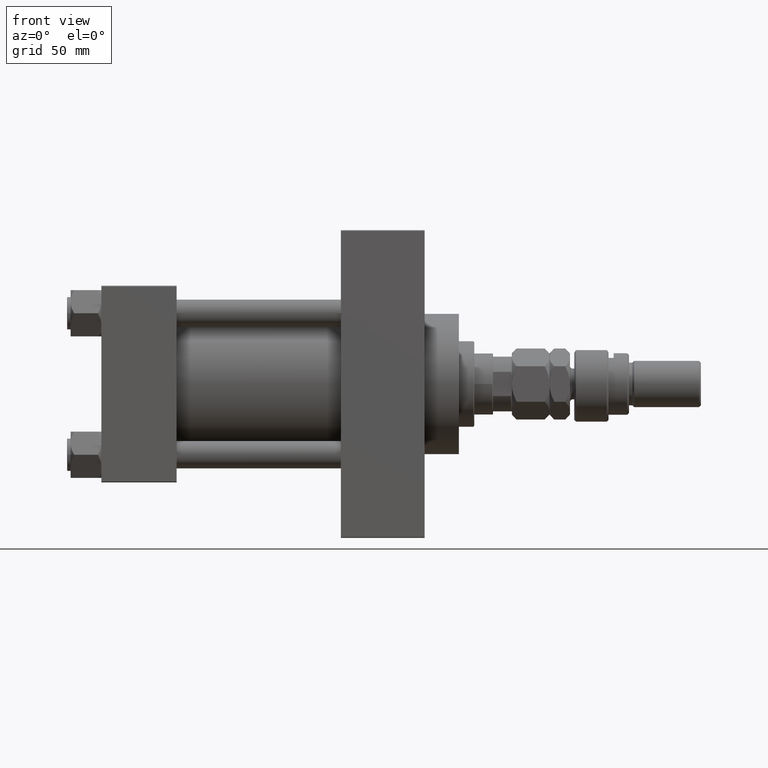
[diagram: clean part render]
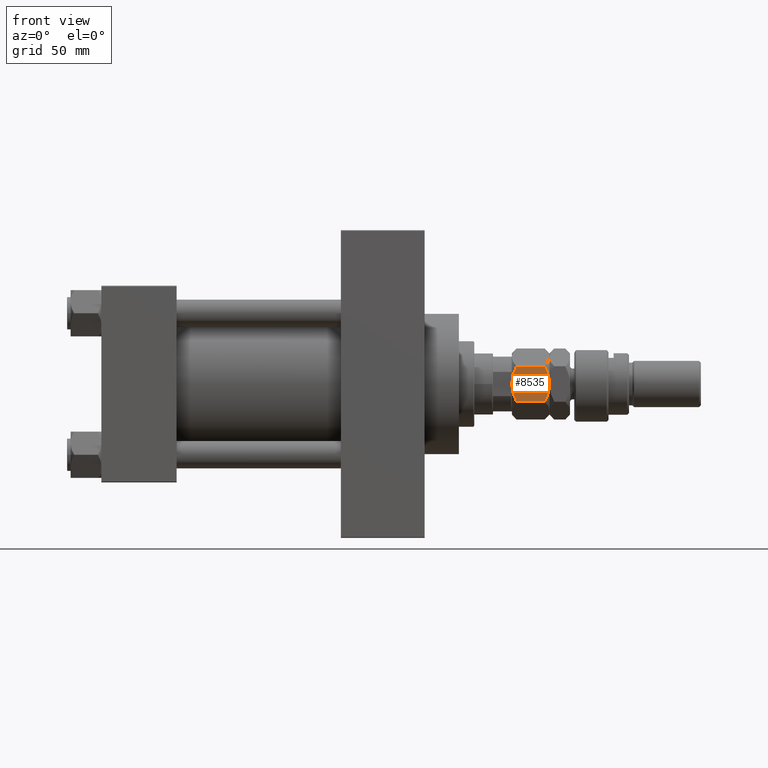
[diagram: same view with one face highlighted and labeled with its STEP entity id]
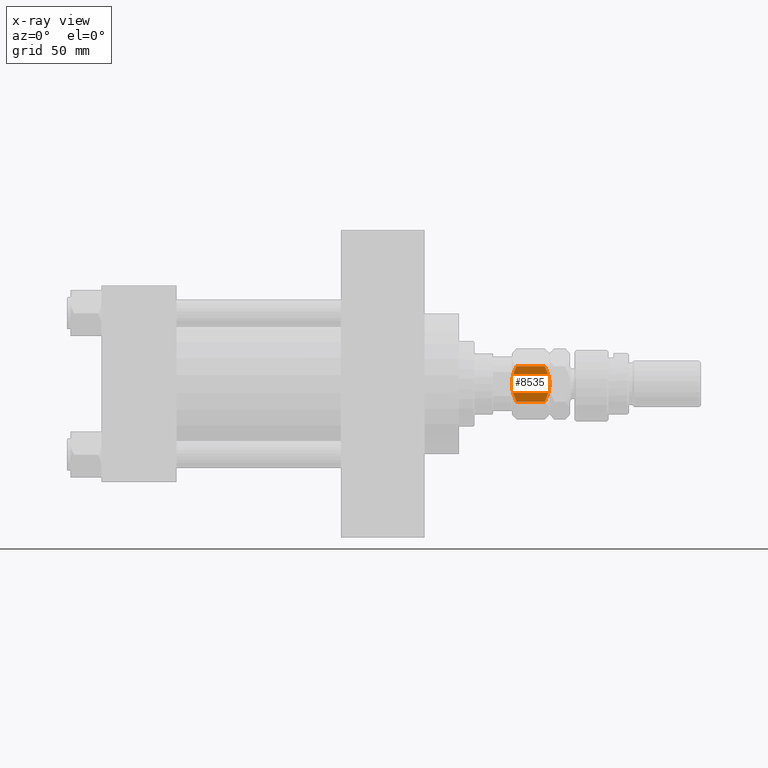
[diagram: x-ray of the same camera — body ghosted, the highlighted face saturated]
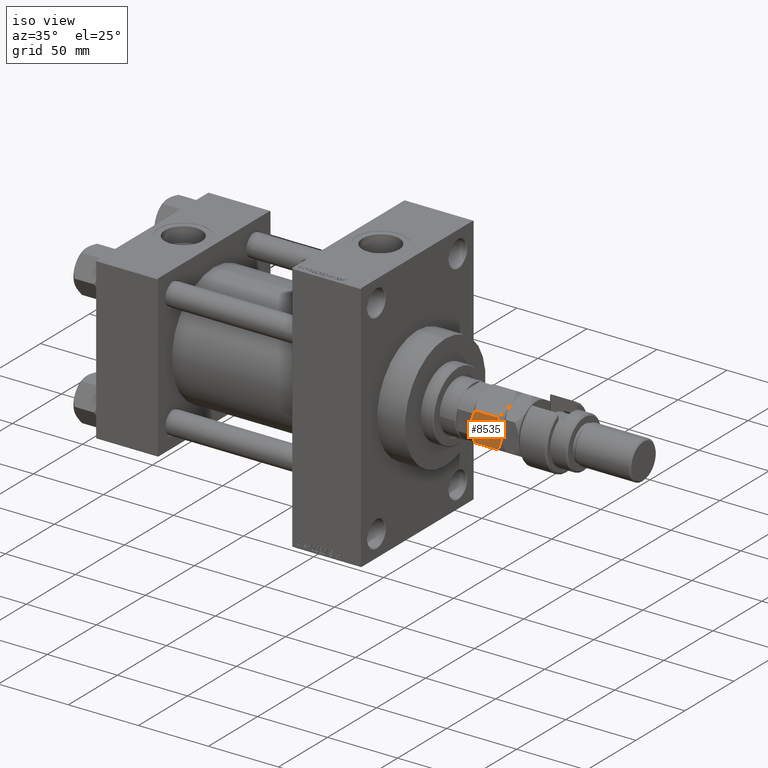
[diagram: same view with one face highlighted and labeled with its STEP entity id]
A machine part, front view. The second image highlights one B-rep face of the part: STEP entity #8535.
The next image is the same camera in x-ray: the body ghosted, the highlighted face saturated — about 0% of this face is hidden behind the body in this view.
A second angle (iso view) of the same face is appended — the face is thin or edge-on in the first view.
In plain terms, the highlighted planar face has unit normal (0, 1, 0).
Its self-contained STEP definition (entity closure, byte-faithful):
#253 = ORIENTED_EDGE ( 'NONE', *, *, #6400, .F. ) ;
#2644 = ORIENTED_EDGE ( 'NONE', *, *, #7861, .F. ) ;
#2661 = LINE ( 'NONE', #37413, #34089 ) ;
#3849 = ORIENTED_EDGE ( 'NONE', *, *, #40925, .F. ) ;
#4535 = CARTESIAN_POINT ( 'NONE',  ( 12.14199022028319597, -13.77442836864822340, 0.3405631022552691456 ) ) ;
#4622 = CARTESIAN_POINT ( 'NONE',  ( 8.999999999999992895, -15.58845726811989252, 22.00000000000000000 ) ) ;
#4792 = CARTESIAN_POINT ( 'NONE',  ( 12.90267270303526814, -13.33524813246347662, 0.5370855558290119625 ) ) ;
#4965 = CARTESIAN_POINT ( 'NONE',  ( 7.415748492146448712, -16.50312530264321254, 21.91305310988184374 ) ) ;
#5040 = CARTESIAN_POINT ( 'NONE',  ( 8.999999999999994671, -15.58845726811989607, 0.000000000000000000 ) ) ;
#5186 = EDGE_CURVE ( 'NONE', #21977, #36841, #12073, .T. ) ;
#6400 = EDGE_CURVE ( 'NONE', #12209, #28870, #7139, .T. ) ;
#6701 = DIRECTION ( 'NONE',  ( -0.8660254037844388186, -0.4999999999999997224, 0.000000000000000000 ) ) ;
#6968 = B_SPLINE_CURVE_WITH_KNOTS ( 'NONE', 3,
 ( #48155, #8543, #36129, #24147, #16463, #24402, #4965, #24659, #9569, #35882 ),
 .UNSPECIFIED., .F., .F.,
 ( 4, 2, 2, 2, 4 ),
 ( 2.544307986817554504E-07, 0.005386537354063071666, 0.008079678815695268135, 0.009426249546511363334, 0.01077282027732746027 ),
 .UNSPECIFIED. ) ;
#7139 = B_SPLINE_CURVE_WITH_KNOTS ( 'NONE', 3,
 ( #23617, #34583, #30263, #19528, #31276, #49929 ),
 .UNSPECIFIED., .F., .F.,
 ( 4, 2, 4 ),
 ( 0.01077282027732747241, 0.01612137750481873466, 0.02146993473230999691 ),
 .UNSPECIFIED. ) ;
#7861 = EDGE_CURVE ( 'NONE', #46979, #21977, #8320, .T. ) ;
#8320 = B_SPLINE_CURVE_WITH_KNOTS ( 'NONE', 3,
 ( #4622, #40133, #15867, #12045, #43212, #47299 ),
 .UNSPECIFIED., .F., .F.,
 ( 4, 2, 4 ),
 ( 0.01077282027732746027, 0.01612137750481873119, 0.02146993473231000038 ),
 .UNSPECIFIED. ) ;
#8535 = ADVANCED_FACE ( 'NONE', ( #41221 ), #41711, .F. ) ;
#8543 = CARTESIAN_POINT ( 'NONE',  ( 1.411330396252046038, -19.96977770663490404, 20.03022229336509952 ) ) ;
#8621 = CARTESIAN_POINT ( 'NONE',  ( 9.790461530629871234, -15.13208409062669801, 0.01733285647409176997 ) ) ;
#9569 = CARTESIAN_POINT ( 'NONE',  ( 8.605874323383760682, -15.81600583360882162, 21.99999999999999289 ) ) ;
#10960 = AXIS2_PLACEMENT_3D ( 'NONE', #33557, #25892, #6701 ) ;
#11667 = VECTOR ( 'NONE', #12320, 1000.000000000000000 ) ;
#12045 = CARTESIAN_POINT ( 'NONE',  ( 15.13928418966203004, -12.04393988858690356, 20.72742529849574922 ) ) ;
#12073 = LINE ( 'NONE', #31492, #11667 ) ;
#12209 = VERTEX_POINT ( 'NONE', #40253 ) ;
#12320 = DIRECTION ( 'NONE',  ( -0.000000000000000000, -0.000000000000000000, -1.000000000000000000 ) ) ;
#12979 = CARTESIAN_POINT ( 'NONE',  ( 18.00000000000000000, -10.39230484541326760, 19.21539030917347901 ) ) ;
#15867 = CARTESIAN_POINT ( 'NONE',  ( 12.10430252359947545, -13.79618737047370658, 21.72360409287842131 ) ) ;
#16463 = CARTESIAN_POINT ( 'NONE',  ( 5.858009779716796039, -17.40248616759157230, 21.65943689774472602 ) ) ;
#16540 = CARTESIAN_POINT ( 'NONE',  ( 9.394125676616228660, -15.36090870263097585, 3.470293984900869278E-15 ) ) ;
#16759 = B_SPLINE_CURVE_WITH_KNOTS ( 'NONE', 3,
 ( #36200, #16799, #39798, #4792, #4535, #39286, #20132, #8621, #16540, #5040 ),
 .UNSPECIFIED., .F., .F.,
 ( 4, 2, 2, 2, 4 ),
 ( 2.544307986804616605E-07, 0.005386537354063076002, 0.008079678815695275074, 0.009426249546511373742, 0.01077282027732747241 ),
 .UNSPECIFIED. ) ;
#16799 = CARTESIAN_POINT ( 'NONE',  ( 16.58866960374795596, -11.20713682960488988, 1.969777706634904035 ) ) ;
#17145 = EDGE_CURVE ( 'NONE', #36841, #12209, #16759, .T. ) ;
#19244 = ORIENTED_EDGE ( 'NONE', *, *, #17145, .F. ) ;
#19528 = CARTESIAN_POINT ( 'NONE',  ( 2.860715810337961074, -19.13297464765287614, 1.272574701504241457 ) ) ;
#20132 = CARTESIAN_POINT ( 'NONE',  ( 10.58425150785354063, -14.67378923359658671, 0.08694689011815642798 ) ) ;
#21075 = CARTESIAN_POINT ( 'NONE',  ( -6.333703707815436362E-16, -20.78460969082652454, 19.21539030917348256 ) ) ;
#21977 = VERTEX_POINT ( 'NONE', #12979 ) ;
#23276 = CARTESIAN_POINT ( 'NONE',  ( 8.999999999999992895, -15.58845726811989252, 22.00000000000000000 ) ) ;
#23617 = CARTESIAN_POINT ( 'NONE',  ( 8.999999999999994671, -15.58845726811989607, 0.000000000000000000 ) ) ;
#24147 = CARTESIAN_POINT ( 'NONE',  ( 5.097327296964719423, -17.84166640377631552, 21.46291444417098049 ) ) ;
#24402 = CARTESIAN_POINT ( 'NONE',  ( 7.023280245922040699, -16.72971695024925154, 21.86127740090141458 ) ) ;
#24659 = CARTESIAN_POINT ( 'NONE',  ( 8.209538469370121661, -16.04483044561310479, 21.98266714352591222 ) ) ;
#25238 = CARTESIAN_POINT ( 'NONE',  ( -5.711424626294094742E-16, -20.78460969082652454, 2.784609690826514772 ) ) ;
#25437 = EDGE_CURVE ( 'NONE', #40956, #28870, #2661, .T. ) ;
#25892 = DIRECTION ( 'NONE',  ( -0.4999999999999997224, 0.8660254037844388186, 0.000000000000000000 ) ) ;
#28870 = VERTEX_POINT ( 'NONE', #25238 ) ;
#30263 = CARTESIAN_POINT ( 'NONE',  ( 5.895697476400517445, -17.38072716576608912, 0.2763959071215842944 ) ) ;
#31276 = CARTESIAN_POINT ( 'NONE',  ( 1.409696000463984467, -19.97072132548310108, 1.970721325483046238 ) ) ;
#31492 = CARTESIAN_POINT ( 'NONE',  ( 18.00000000000000000, -10.39230484541326760, 22.00000000000000000 ) ) ;
#32004 = ORIENTED_EDGE ( 'NONE', *, *, #25437, .T. ) ;
#33557 = CARTESIAN_POINT ( 'NONE',  ( -8.673617379884035472E-16, -20.78460969082652454, 22.00000000000000000 ) ) ;
#34089 = VECTOR ( 'NONE', #41504, 1000.000000000000000 ) ;
#34583 = CARTESIAN_POINT ( 'NONE',  ( 7.434539168300455358, -16.49227650070744033, 3.567702773835112239E-15 ) ) ;
#35882 = CARTESIAN_POINT ( 'NONE',  ( 8.999999999999992895, -15.58845726811989252, 22.00000000000000000 ) ) ;
#36129 = CARTESIAN_POINT ( 'NONE',  ( 2.854601888853810721, -19.13650452186756823, 20.72261692211012374 ) ) ;
#36200 = CARTESIAN_POINT ( 'NONE',  ( 18.00000000000000000, -10.39230484541326760, 2.784609690826518769 ) ) ;
#36841 = VERTEX_POINT ( 'NONE', #44578 ) ;
#37413 = CARTESIAN_POINT ( 'NONE',  ( -8.673617379884035472E-16, -20.78460969082652454, 22.00000000000000000 ) ) ;
#39286 = CARTESIAN_POINT ( 'NONE',  ( 10.97671975407794953, -14.44719758599054593, 0.1387225990985770097 ) ) ;
#39798 = CARTESIAN_POINT ( 'NONE',  ( 15.14539811114618928, -12.04041001437223102, 1.277383077889873153 ) ) ;
#40133 = CARTESIAN_POINT ( 'NONE',  ( 10.56546083169953043, -14.68463803553235358, 21.99999999999998934 ) ) ;
#40253 = CARTESIAN_POINT ( 'NONE',  ( 8.999999999999994671, -15.58845726811989607, 0.000000000000000000 ) ) ;
#40925 = EDGE_CURVE ( 'NONE', #40956, #46979, #6968, .T. ) ;
#40956 = VERTEX_POINT ( 'NONE', #21075 ) ;
#41221 = FACE_OUTER_BOUND ( 'NONE', #50134, .T. ) ;
#41504 = DIRECTION ( 'NONE',  ( -0.000000000000000000, -0.000000000000000000, -1.000000000000000000 ) ) ;
#41711 = PLANE ( 'NONE',  #10960 ) ;
#43212 = CARTESIAN_POINT ( 'NONE',  ( 16.59030399953601531, -11.20619321075668928, 20.02927867451694510 ) ) ;
#43755 = ORIENTED_EDGE ( 'NONE', *, *, #5186, .F. ) ;
#44578 = CARTESIAN_POINT ( 'NONE',  ( 18.00000000000000000, -10.39230484541326760, 2.784609690826518769 ) ) ;
#46979 = VERTEX_POINT ( 'NONE', #23276 ) ;
#47299 = CARTESIAN_POINT ( 'NONE',  ( 18.00000000000000000, -10.39230484541326760, 19.21539030917347901 ) ) ;
#48155 = CARTESIAN_POINT ( 'NONE',  ( -6.333703707815436362E-16, -20.78460969082652454, 19.21539030917348256 ) ) ;
#49929 = CARTESIAN_POINT ( 'NONE',  ( -5.711424626294094742E-16, -20.78460969082652454, 2.784609690826514772 ) ) ;
#50134 = EDGE_LOOP ( 'NONE', ( #19244, #43755, #2644, #3849, #32004, #253 ) ) ;